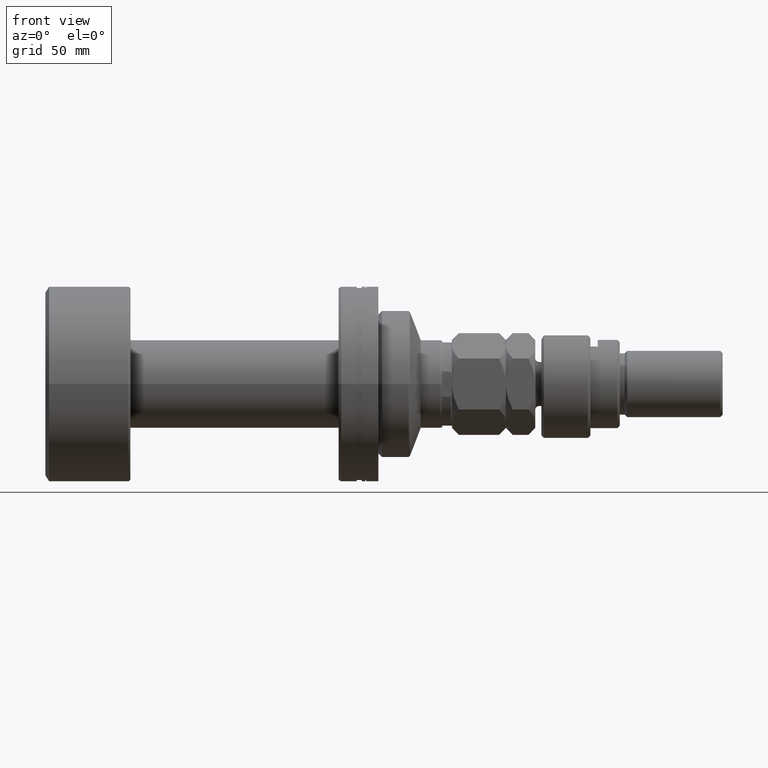
[diagram: clean part render]
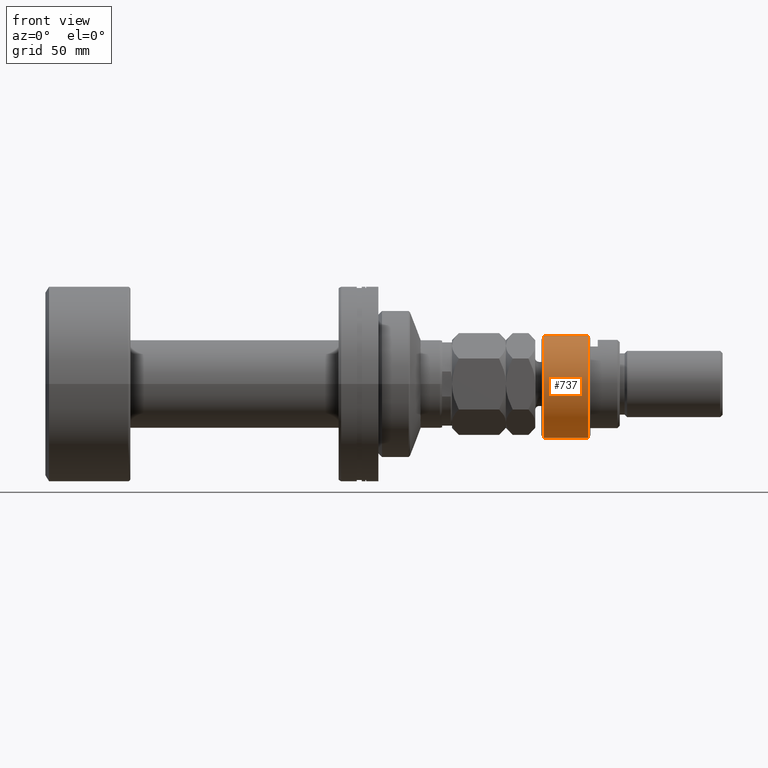
[diagram: same view with one face highlighted and labeled with its STEP entity id]
A machine part, front view. The second image highlights one B-rep face of the part: STEP entity #737.
In plain terms, the highlighted cylindrical surface (partial cylindrical patch) has radius 22 mm, axis along (-1, -0, 0).
Its self-contained STEP definition (entity closure, byte-faithful):
#23 = CARTESIAN_POINT ( 'NONE',  ( -19.84313483298442904, 9.500000000000000000, 18.99999999999998579 ) ) ;
#139 = VECTOR ( 'NONE', #969, 1000.000000000000000 ) ;
#274 = FACE_OUTER_BOUND ( 'NONE', #1756, .T. ) ;
#351 = ORIENTED_EDGE ( 'NONE', *, *, #3229, .T. ) ;
#408 = CARTESIAN_POINT ( 'NONE',  ( -19.84313483298442904, 9.500000000000000000, 23.00000000000000000 ) ) ;
#490 = CARTESIAN_POINT ( 'NONE',  ( -19.84313483298442904, 9.500000000000000000, 1.000000000000000888 ) ) ;
#511 = EDGE_CURVE ( 'NONE', #4498, #2211, #1777, .T. ) ;
#712 = ORIENTED_EDGE ( 'NONE', *, *, #4456, .F. ) ;
#737 = ADVANCED_FACE ( 'NONE', ( #274 ), #4296, .T. ) ;
#752 = DIRECTION ( 'NONE',  ( -1.000000000000000000, 0.000000000000000000, 0.000000000000000000 ) ) ;
#864 = CARTESIAN_POINT ( 'NONE',  ( -19.84313483298442193, -9.500000000000005329, 1.000000000000000888 ) ) ;
#916 = DIRECTION ( 'NONE',  ( -0.000000000000000000, -0.000000000000000000, 1.000000000000000000 ) ) ;
#918 = EDGE_CURVE ( 'NONE', #4867, #1027, #2361, .T. ) ;
#952 = AXIS2_PLACEMENT_3D ( 'NONE', #4076, #1778, #978 ) ;
#969 = DIRECTION ( 'NONE',  ( -0.000000000000000000, -0.000000000000000000, -1.000000000000000000 ) ) ;
#978 = DIRECTION ( 'NONE',  ( 1.000000000000000000, 0.000000000000000000, 0.000000000000000000 ) ) ;
#1027 = VERTEX_POINT ( 'NONE', #2952 ) ;
#1139 = CIRCLE ( 'NONE', #5092, 22.00000000000000000 ) ;
#1255 = LINE ( 'NONE', #408, #2968 ) ;
#1296 = DIRECTION ( 'NONE',  ( 1.000000000000000000, 0.000000000000000000, 0.000000000000000000 ) ) ;
#1578 = ORIENTED_EDGE ( 'NONE', *, *, #2801, .T. ) ;
#1579 = DIRECTION ( 'NONE',  ( -0.000000000000000000, -0.000000000000000000, 1.000000000000000000 ) ) ;
#1685 = CARTESIAN_POINT ( 'NONE',  ( 0.000000000000000000, 0.000000000000000000, 1.000000000000000888 ) ) ;
#1700 = ORIENTED_EDGE ( 'NONE', *, *, #918, .T. ) ;
#1756 = EDGE_LOOP ( 'NONE', ( #712, #1700, #1578, #3938, #351 ) ) ;
#1777 = CIRCLE ( 'NONE', #3459, 22.00000000000000000 ) ;
#1778 = DIRECTION ( 'NONE',  ( 0.000000000000000000, 0.000000000000000000, -1.000000000000000000 ) ) ;
#2211 = VERTEX_POINT ( 'NONE', #3677 ) ;
#2361 = CIRCLE ( 'NONE', #952, 22.00000000000000000 ) ;
#2502 = CARTESIAN_POINT ( 'NONE',  ( -19.84313483298442193, -9.500000000000005329, 23.00000000000000000 ) ) ;
#2523 = AXIS2_PLACEMENT_3D ( 'NONE', #2730, #2674, #752 ) ;
#2674 = DIRECTION ( 'NONE',  ( -0.000000000000000000, -0.000000000000000000, -1.000000000000000000 ) ) ;
#2730 = CARTESIAN_POINT ( 'NONE',  ( 0.000000000000000000, 0.000000000000000000, 20.00000000000000000 ) ) ;
#2801 = EDGE_CURVE ( 'NONE', #1027, #4498, #3691, .T. ) ;
#2848 = DIRECTION ( 'NONE',  ( -0.000000000000000000, -0.000000000000000000, -1.000000000000000000 ) ) ;
#2952 = CARTESIAN_POINT ( 'NONE',  ( -19.84313483298442193, -9.500000000000005329, 18.99999999999998579 ) ) ;
#2968 = VECTOR ( 'NONE', #2848, 1000.000000000000000 ) ;
#3229 = EDGE_CURVE ( 'NONE', #2211, #3994, #1139, .T. ) ;
#3392 = DIRECTION ( 'NONE',  ( 1.000000000000000000, 0.000000000000000000, 0.000000000000000000 ) ) ;
#3459 = AXIS2_PLACEMENT_3D ( 'NONE', #1685, #1579, #3392 ) ;
#3677 = CARTESIAN_POINT ( 'NONE',  ( 22.00000000000000000, 0.000000000000000000, 1.000000000000000888 ) ) ;
#3686 = CARTESIAN_POINT ( 'NONE',  ( 0.000000000000000000, 0.000000000000000000, 1.000000000000000888 ) ) ;
#3691 = LINE ( 'NONE', #2502, #139 ) ;
#3938 = ORIENTED_EDGE ( 'NONE', *, *, #511, .T. ) ;
#3994 = VERTEX_POINT ( 'NONE', #490 ) ;
#4076 = CARTESIAN_POINT ( 'NONE',  ( 0.000000000000000000, 0.000000000000000000, 18.99999999999998579 ) ) ;
#4296 = CYLINDRICAL_SURFACE ( 'NONE', #2523, 22.00000000000000000 ) ;
#4456 = EDGE_CURVE ( 'NONE', #4867, #3994, #1255, .T. ) ;
#4498 = VERTEX_POINT ( 'NONE', #864 ) ;
#4867 = VERTEX_POINT ( 'NONE', #23 ) ;
#5092 = AXIS2_PLACEMENT_3D ( 'NONE', #3686, #916, #1296 ) ;